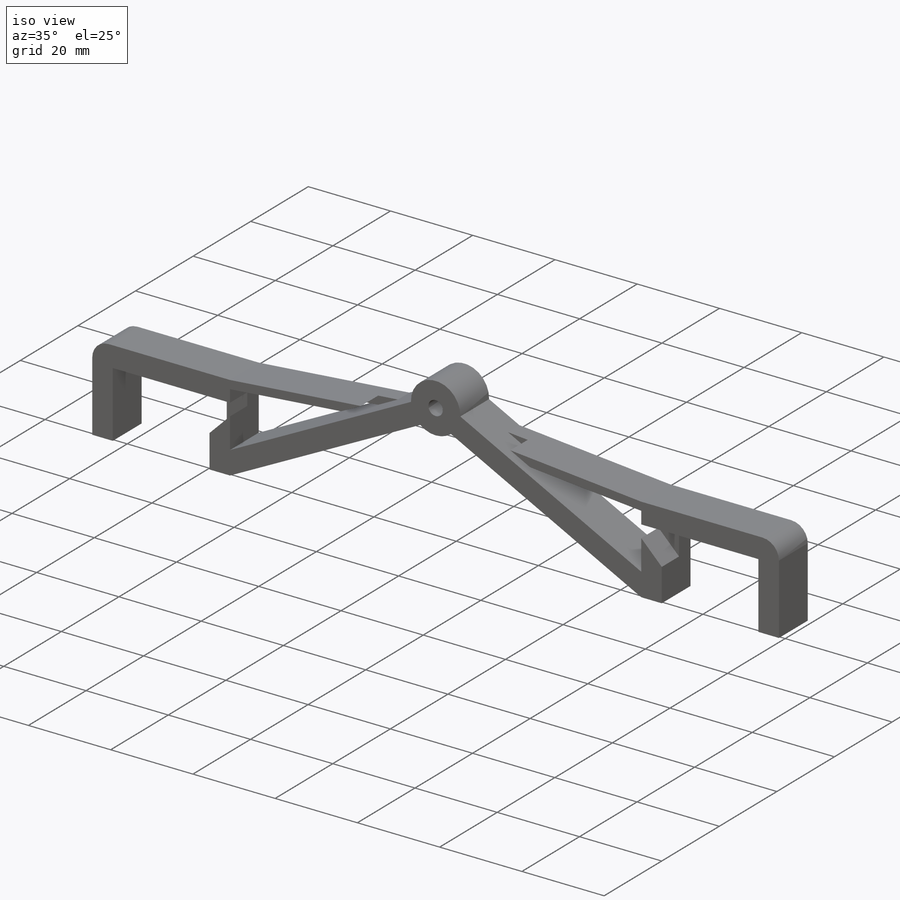
[diagram: iso view]
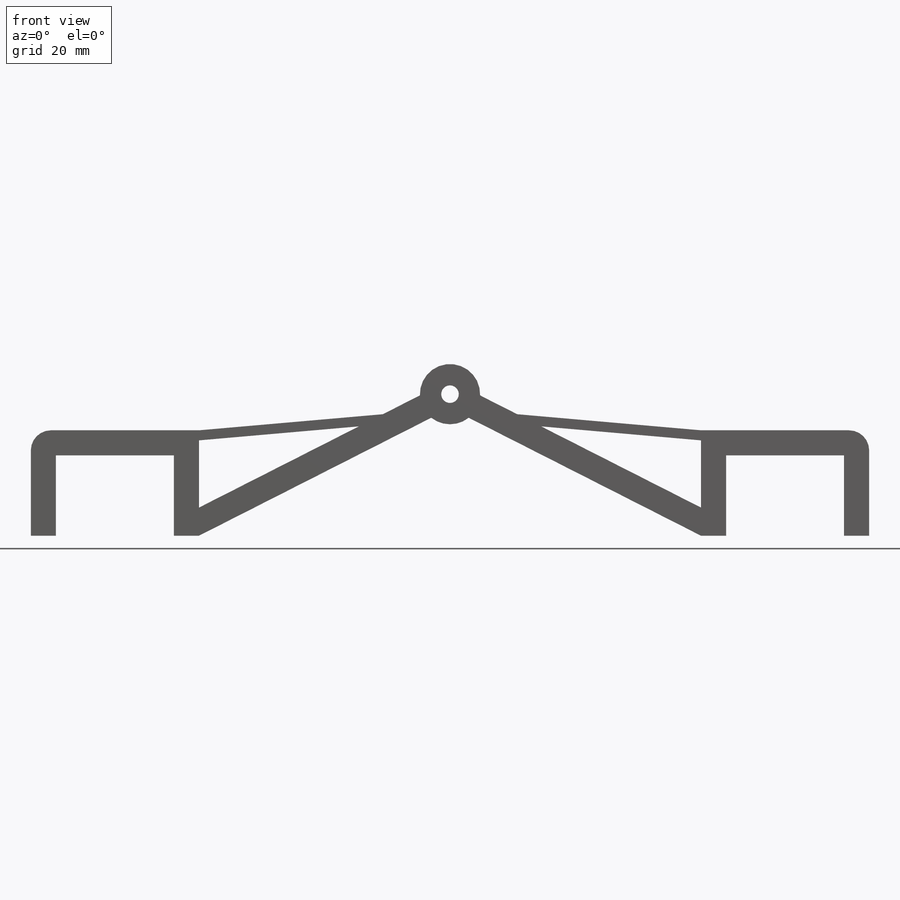
[diagram: front view]
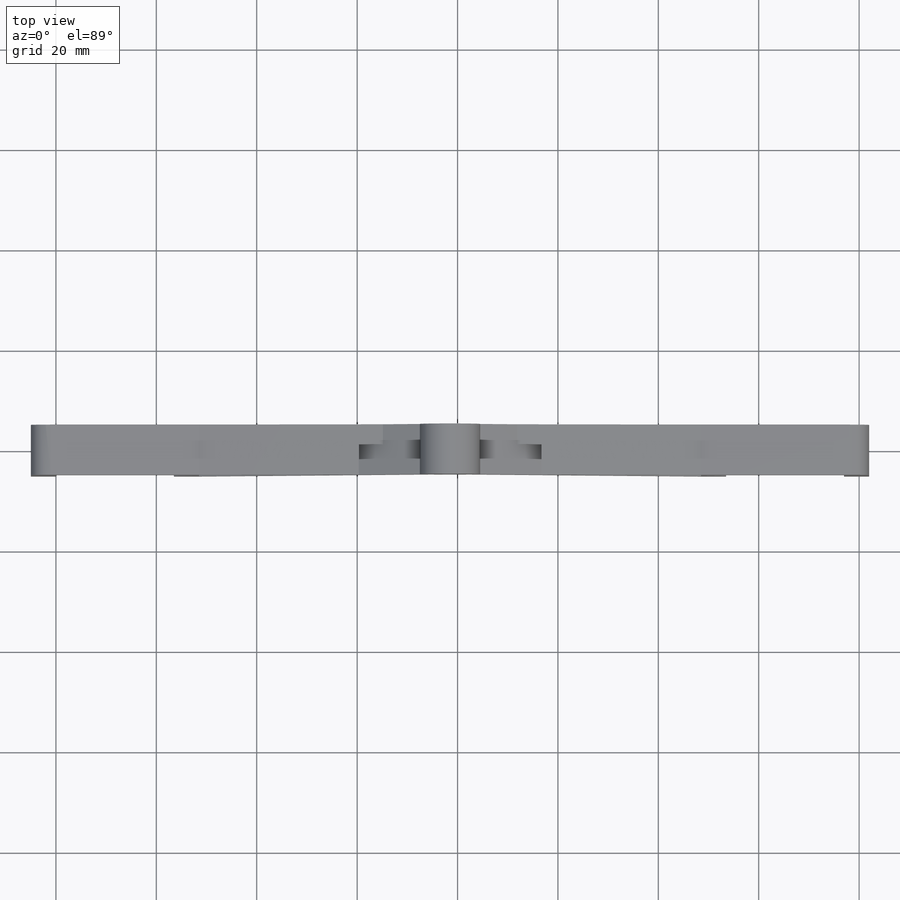
[diagram: top view]
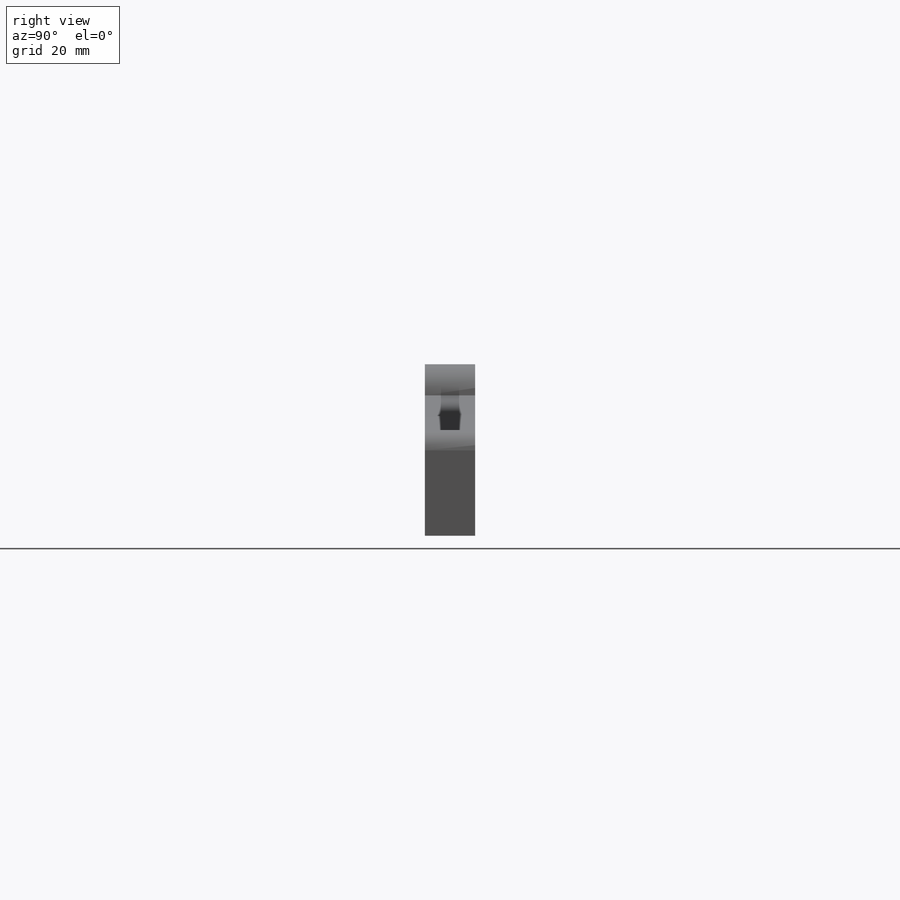
[diagram: right view]
SOLIDWORKS PART (.sldprt)
format: sldprt  version: not decoded by parser v0  size: 330,240 bytes
history: native  units: mm
features: sketch x5, plane x4, mirror x3, cut_extrude x3, extrude x2, material x1, fillet x1 (+10 scaffold rows collapsed)
feature tree (29):
  scaffold x10  (default folders/planes/origin — collapsed)
  material  "ABS"
  plane  "Přední rovina"
  plane  "Horní rovina"
  plane  "Pravá rovina"
  sketch  "Skica1"  dims[c1.D11=12.0mm c1.D12=3.5mm c1.D1=5.0mm c1.D2=5.0mm c1.D3=23.5mm c1.D4=16.0mm c1.D5=5.0mm c1.D6=5.0mm c1.D7=5.0mm c1.D8=55.0mm c1.D9=10.0mm c1.D10=~25.103637mm c2.D10=140.0deg c3.D10=~5.375908mm c4.D10=~68.44658deg c5.D10=~32.17291mm c6.D10=140.0deg]
  extrude  "Přidat vysunutím1"  Depth=10mm
  fillet  "Zaoblit1"  Radius=4mm
  sketch  "Skica2"  dims[c1.D1=2.0mm c1.D2=~32.663848mm c2.D2=175.0deg]
  extrude  "Přidat vysunutím2"  Depth=10mm
  plane  "Rovina1"
  mirror  "Zrcadlit1"
  sketch  "Skica3"  dims[D1=2.1mm D2=27.0mm]
  cut_extrude  "Odebrat vysunutím1"  Depth=6mm
  mirror  "Zrcadlit2"
  sketch  "Skica4"  dims[c1.D1=5.0mm c2.D1=45.0deg c2.D2=3.0mm c2.D3=8.0mm]
  cut_extrude  "Odebrat vysunutím2"  Depth=6mm
  mirror  "Zrcadlit3"
  sketch  "Skica5"  dims[c1.D1=1.8mm c1.D2=~6.584518mm c2.D2=~175.759096deg c3.D2=1.8mm]
  cut_extrude  "Odebrat vysunutím3"  [1 undecoded]
decode coverage: 10 of 14 modeling features carry decoded parameters
note: ~ marks probable driven/reference dimensions
note: 1 parameter value undecoded
note: suppression state not decoded; provenance and decode notes live in map.json
